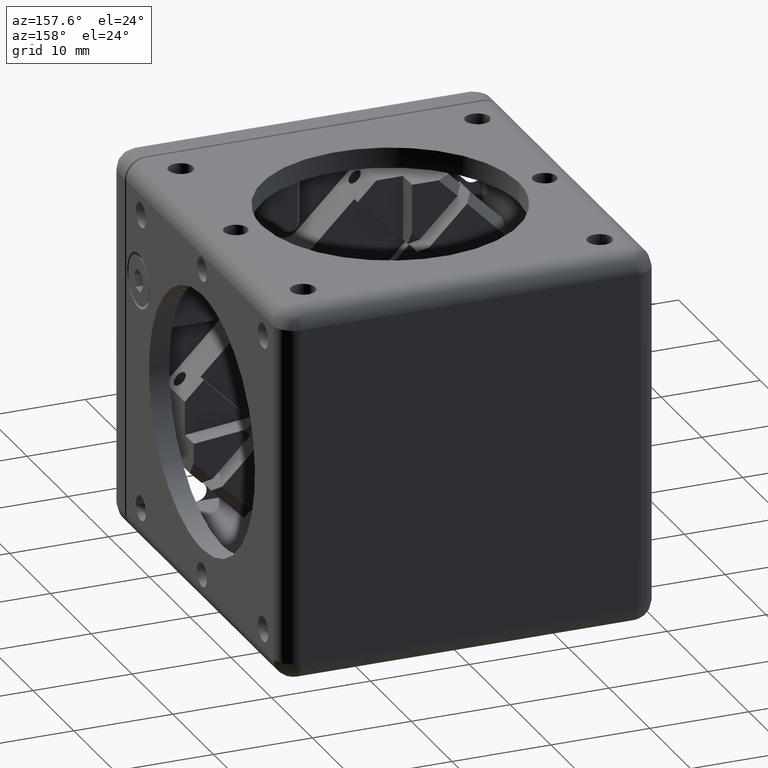
[diagram: clean part render]
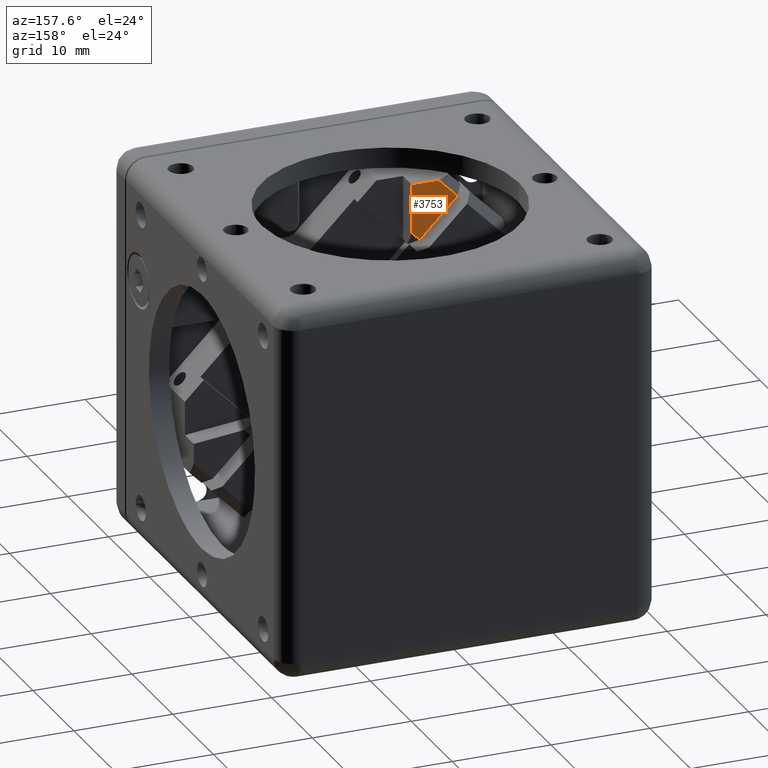
[diagram: same view with one face highlighted and labeled with its STEP entity id]
A machine part, auxiliary view. The second image highlights one B-rep face of the part: STEP entity #3753.
In plain terms, the highlighted face is a freeform B-spline surface patch.
Its self-contained STEP definition (entity closure, byte-faithful):
#363 = CARTESIAN_POINT ( 'NONE',  ( -7.584991848651470470, 9.400000000000000355, 9.526992256063088860 ) ) ;
#907 = VERTEX_POINT ( 'NONE', #8405 ) ;
#1031 = ORIENTED_EDGE ( 'NONE', *, *, #8751, .T. ) ;
#1221 = B_SPLINE_CURVE_WITH_KNOTS ( 'NONE', 1,
 ( #11692, #8007 ),
 .UNSPECIFIED., .F., .F.,
 ( 2, 2 ),
 ( 0.000000000000000000, 1.000000000000000000 ),
 .UNSPECIFIED. ) ;
#1264 = ORIENTED_EDGE ( 'NONE', *, *, #7012, .F. ) ;
#1484 = CARTESIAN_POINT ( 'NONE',  ( -6.807174389346250187, 9.400000000000000355, 10.30480971536829848 ) ) ;
#1753 = EDGE_LOOP ( 'NONE', ( #7457, #1031, #8002, #1264, #2136 ) ) ;
#2136 = ORIENTED_EDGE ( 'NONE', *, *, #12448, .T. ) ;
#2255 = FACE_OUTER_BOUND ( 'NONE', #1753, .T. ) ;
#2730 = B_SPLINE_CURVE_WITH_KNOTS ( 'NONE', 1,
 ( #3625, #2803 ),
 .UNSPECIFIED., .F., .F.,
 ( 2, 2 ),
 ( 0.000000000000000000, 1.000000000000000000 ),
 .UNSPECIFIED. ) ;
#2803 = CARTESIAN_POINT ( 'NONE',  ( -6.807174389346240417, 9.400000000000000355, 15.25455718367409830 ) ) ;
#3625 = CARTESIAN_POINT ( 'NONE',  ( -6.807174389346250187, 9.400000000000000355, 10.30480971536829848 ) ) ;
#3652 = B_SPLINE_CURVE_WITH_KNOTS ( 'NONE', 1,
 ( #9384, #1484 ),
 .UNSPECIFIED., .F., .F.,
 ( 2, 2 ),
 ( 0.000000000000000000, 1.000000000000000000 ),
 .UNSPECIFIED. ) ;
#3753 = ADVANCED_FACE ( 'NONE', ( #2255 ), #8990, .T. ) ;
#3940 = CARTESIAN_POINT ( 'NONE',  ( -9.494180157855140578, 9.400000000000000355, 15.25455718367409830 ) ) ;
#4877 = VERTEX_POINT ( 'NONE', #7346 ) ;
#4958 = CARTESIAN_POINT ( 'NONE',  ( -8.598511568352174450, 9.400000000000000355, 15.25455718367411428 ) ) ;
#5619 = VERTEX_POINT ( 'NONE', #7401 ) ;
#5785 = CARTESIAN_POINT ( 'NONE',  ( -7.702842978849202105, 9.400000000000000355, 15.25455718367411784 ) ) ;
#5892 = EDGE_CURVE ( 'NONE', #907, #5619, #10629, .T. ) ;
#6105 = CARTESIAN_POINT ( 'NONE',  ( -11.40336846705880092, 9.400000000000000355, 13.34536887447040066 ) ) ;
#6258 = CARTESIAN_POINT ( 'NONE',  ( -7.584991848651470470, 9.400000000000000355, 9.526992256063088860 ) ) ;
#6520 = B_SPLINE_CURVE_WITH_KNOTS ( 'NONE', 3,
 ( #3940, #4958, #5785, #7957 ),
 .UNSPECIFIED., .F., .F.,
 ( 4, 4 ),
 ( 0.000000000000000000, 1.000000000000000000 ),
 .UNSPECIFIED. ) ;
#6758 = VERTEX_POINT ( 'NONE', #10149 ) ;
#6764 = VERTEX_POINT ( 'NONE', #6258 ) ;
#7012 = EDGE_CURVE ( 'NONE', #6764, #4877, #3652, .T. ) ;
#7346 = CARTESIAN_POINT ( 'NONE',  ( -6.807174389346250187, 9.400000000000000355, 10.30480971536829848 ) ) ;
#7401 = CARTESIAN_POINT ( 'NONE',  ( -11.40336846705880092, 9.400000000000000355, 13.34536887447040066 ) ) ;
#7457 = ORIENTED_EDGE ( 'NONE', *, *, #5892, .F. ) ;
#7957 = CARTESIAN_POINT ( 'NONE',  ( -6.807174389346240417, 9.400000000000000355, 15.25455718367409830 ) ) ;
#8002 = ORIENTED_EDGE ( 'NONE', *, *, #11360, .F. ) ;
#8007 = CARTESIAN_POINT ( 'NONE',  ( -11.40336846705880092, 9.400000000000000355, 13.34536887447040066 ) ) ;
#8405 = CARTESIAN_POINT ( 'NONE',  ( -9.494180157855140578, 9.400000000000000355, 15.25455718367409830 ) ) ;
#8751 = EDGE_CURVE ( 'NONE', #907, #6758, #6520, .T. ) ;
#8990 = B_SPLINE_SURFACE_WITH_KNOTS ( 'NONE', 1, 1, ( 
 ( #363, #12176 ),
 ( #9261, #10028 ) ),
 .UNSPECIFIED., .F., .F., .F.,
 ( 2, 2 ),
 ( 2, 2 ),
 ( 0.000000000000000000, 1.000000000000000000 ),
 ( 0.000000000000000000, 1.000000000000000000 ),
 .UNSPECIFIED. ) ;
#9261 = CARTESIAN_POINT ( 'NONE',  ( -11.40336846705880092, 9.400000000000000355, 13.34536887447040066 ) ) ;
#9384 = CARTESIAN_POINT ( 'NONE',  ( -7.584991848651470470, 9.400000000000000355, 9.526992256063088860 ) ) ;
#9757 = CARTESIAN_POINT ( 'NONE',  ( -9.494180157855140578, 9.400000000000000355, 15.25455718367409830 ) ) ;
#10028 = CARTESIAN_POINT ( 'NONE',  ( -8.150677273600688721, 9.400000000000000355, 16.59806006792859634 ) ) ;
#10149 = CARTESIAN_POINT ( 'NONE',  ( -6.807174389346240417, 9.400000000000000355, 15.25455718367409830 ) ) ;
#10629 = B_SPLINE_CURVE_WITH_KNOTS ( 'NONE', 1,
 ( #9757, #6105 ),
 .UNSPECIFIED., .F., .F.,
 ( 2, 2 ),
 ( 0.000000000000000000, 1.000000000000000000 ),
 .UNSPECIFIED. ) ;
#11360 = EDGE_CURVE ( 'NONE', #4877, #6758, #2730, .T. ) ;
#11692 = CARTESIAN_POINT ( 'NONE',  ( -7.584991848651470470, 9.400000000000000355, 9.526992256063088860 ) ) ;
#12176 = CARTESIAN_POINT ( 'NONE',  ( -4.332300655193339622, 9.400000000000000355, 12.77968344952119928 ) ) ;
#12448 = EDGE_CURVE ( 'NONE', #6764, #5619, #1221, .T. ) ;